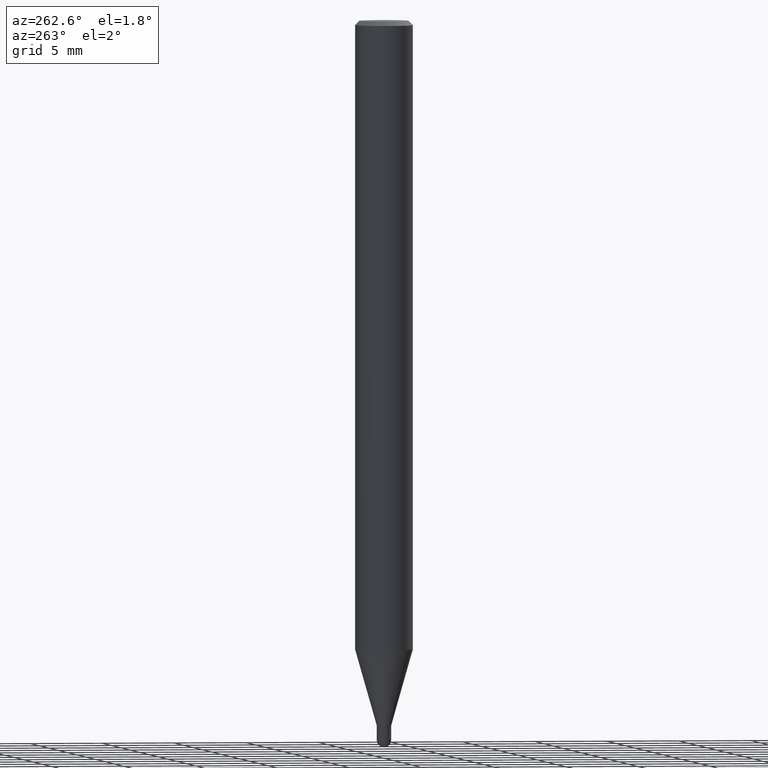
[diagram: clean part render]
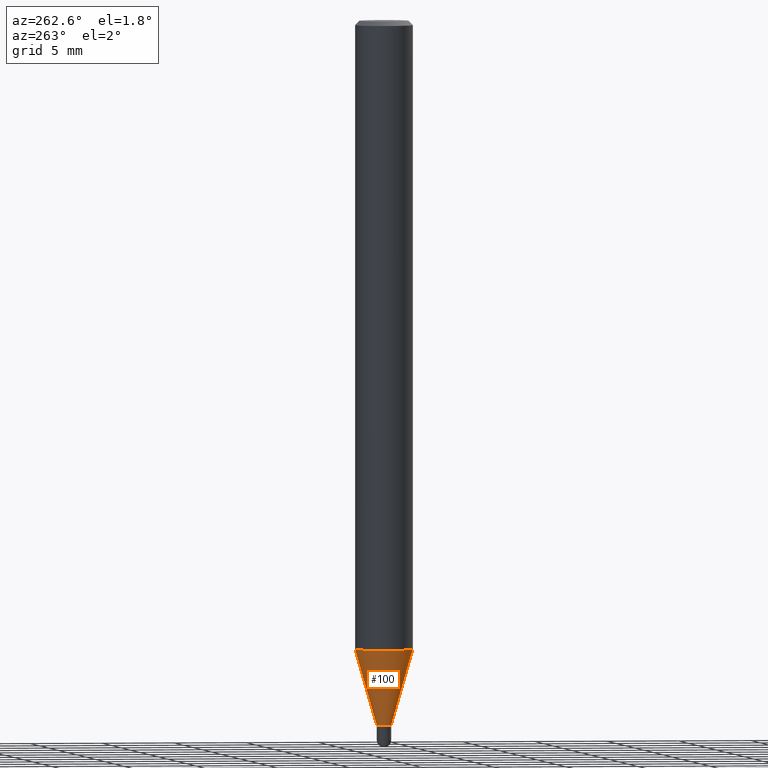
[diagram: same view with one face highlighted and labeled with its STEP entity id]
A machine part, auxiliary view. The second image highlights one B-rep face of the part: STEP entity #100.
In plain terms, the highlighted conical surface has half-angle 16 deg.
Its self-contained STEP definition (entity closure, byte-faithful):
#88=VERTEX_POINT('',#213);
#100=ADVANCED_FACE('',(#226),#227,.T.);
#110=EDGE_CURVE('',#88,#126,#238,.T.);
#118=EDGE_CURVE('',#130,#88,#246,.T.);
#126=VERTEX_POINT('',#255);
#130=VERTEX_POINT('',#259);
#132=EDGE_CURVE('',#184,#130,#261,.T.);
#184=VERTEX_POINT('',#324);
#186=EDGE_CURVE('',#184,#126,#326,.T.);
#213=CARTESIAN_POINT('',(0.0,1.99995,-43.269));
#226=FACE_OUTER_BOUND('',#361,.T.);
#227=CONICAL_SURFACE('',#362,1.24995,0.279258842899557);
#238=LINE('',#379,#380);
#246=CIRCLE('',#391,1.99995);
#255=CARTESIAN_POINT('',(0.0,0.49995,-48.5));
#259=CARTESIAN_POINT('',(2.44915147732706E-016,-1.99995,-43.269));
#261=LINE('',#409,#410);
#324=CARTESIAN_POINT('',(6.12241946593498E-017,-0.49995,-48.5));
#326=CIRCLE('',#485,0.49995);
#361=EDGE_LOOP('',(#511,#512,#513,#514));
#362=AXIS2_PLACEMENT_3D('',#515,#516,#517);
#379=CARTESIAN_POINT('',(-1.53069671196028E-016,1.24995,-45.8845));
#380=VECTOR('',#531,1.0);
#391=AXIS2_PLACEMENT_3D('',#538,#539,#540);
#409=CARTESIAN_POINT('',(1.53069671196028E-016,-1.24995,-45.8845));
#410=VECTOR('',#555,1.0);
#485=AXIS2_PLACEMENT_3D('',#646,#647,#648);
#511=ORIENTED_EDGE('',*,*,#110,.T.);
#512=ORIENTED_EDGE('',*,*,#186,.F.);
#513=ORIENTED_EDGE('',*,*,#132,.T.);
#514=ORIENTED_EDGE('',*,*,#118,.T.);
#515=CARTESIAN_POINT('',(0.0,0.0,-45.8845));
#516=DIRECTION('',(-0.0,-0.0,1.0));
#517=DIRECTION('',(0.0,1.0,0.0));
#531=DIRECTION('',(3.37554511665357E-017,-0.275643279664314,-0.961259997282682));
#538=CARTESIAN_POINT('',(0.0,0.0,-43.269));
#539=DIRECTION('',(0.0,0.0,-1.0));
#540=DIRECTION('',(0.0,1.0,0.0));
#555=DIRECTION('',(3.37554511665357E-017,-0.275643279664314,0.961259997282682));
#646=CARTESIAN_POINT('',(0.0,0.0,-48.5));
#647=DIRECTION('',(0.0,0.0,-1.0));
#648=DIRECTION('',(0.0,1.0,0.0));